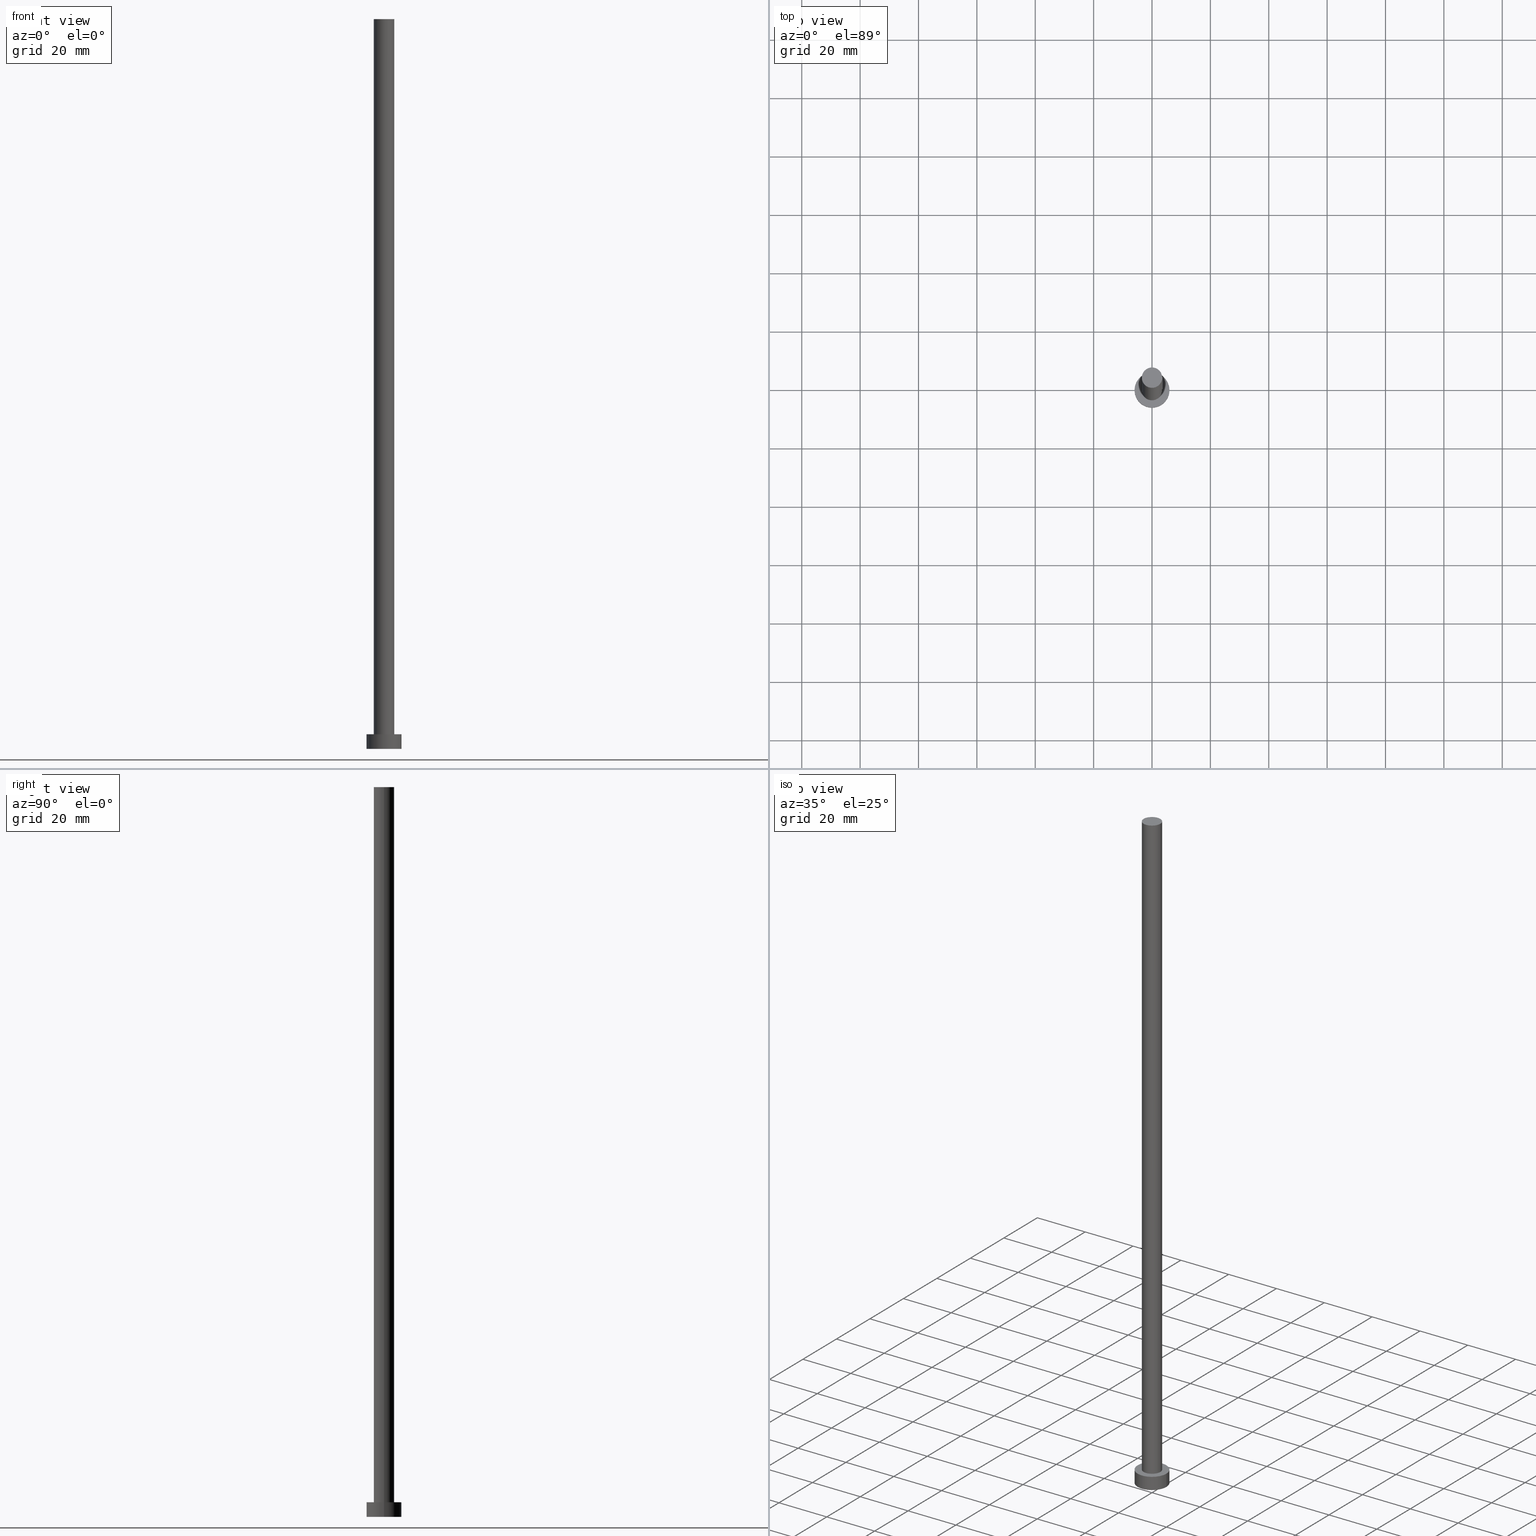
[diagram: canonical four-view strip — front | top / right | iso, engineering-drawing reading convention]
A machine part, canonical four-view strip (front | top / right | iso — engineering-drawing reading convention). The complete STEP part file that produces these views, byte-faithful:
ISO-10303-21;
HEADER;
FILE_DESCRIPTION (( 'STEP AP203' ),
    '1' );
FILE_NAME ('27db.STEP',
    '2023-02-13T11:46:23',
    ( '' ),
    ( '' ),
    'SwSTEP 2.0',
    'SolidWorks 2019',
    '' );
FILE_SCHEMA (( 'CONFIG_CONTROL_DESIGN' ));
ENDSEC;

DATA;
#1 = COORDINATED_UNIVERSAL_TIME_OFFSET ( 1, 0, .AHEAD. ) ;
#2 = CYLINDRICAL_SURFACE ( 'NONE', #93, 3.500000000000000000 ) ;
#3 = COORDINATED_UNIVERSAL_TIME_OFFSET ( 1, 0, .AHEAD. ) ;
#4 = PLANE ( 'NONE',  #53 ) ;
#5 = SECURITY_CLASSIFICATION_LEVEL ( 'unclassified' ) ;
#6 = DIRECTION ( 'NONE',  ( -0.000000000000000000, -0.000000000000000000, -1.000000000000000000 ) ) ;
#7 = CIRCLE ( 'NONE', #176, 6.000000000000000888 ) ;
#8 = CARTESIAN_POINT ( 'NONE',  ( 0.000000000000000000, 0.000000000000000000, 0.000000000000000000 ) ) ;
#9 = COORDINATED_UNIVERSAL_TIME_OFFSET ( 1, 0, .AHEAD. ) ;
#10 = VERTEX_POINT ( 'NONE', #32 ) ;
#11 = CARTESIAN_POINT ( 'NONE',  ( 0.000000000000000000, 0.000000000000000000, 0.000000000000000000 ) ) ;
#12 = EDGE_LOOP ( 'NONE', ( #83, #139, #104, #237 ) ) ;
#13 = DIRECTION ( 'NONE',  ( 1.000000000000000000, 0.000000000000000000, 0.000000000000000000 ) ) ;
#14 = APPROVAL_ROLE ( '' ) ;
#15 = CARTESIAN_POINT ( 'NONE',  ( 6.000000000000000888, 7.347880794884120722E-16, 5.000000000000000000 ) ) ;
#16 = DIRECTION ( 'NONE',  ( -0.000000000000000000, -0.000000000000000000, -1.000000000000000000 ) ) ;
#17 = APPROVAL_STATUS ( 'not_yet_approved' ) ;
#18 = DIRECTION ( 'NONE',  ( -0.000000000000000000, -0.000000000000000000, -1.000000000000000000 ) ) ;
#19 = CARTESIAN_POINT ( 'NONE',  ( 0.000000000000000000, 0.000000000000000000, 5.000000000000000000 ) ) ;
#20 = CC_DESIGN_DATE_AND_TIME_ASSIGNMENT ( #90, #239, ( #191 ) ) ;
#21 = CARTESIAN_POINT ( 'NONE',  ( -3.500000000000000000, 0.000000000000000000, 5.000000000000000000 ) ) ;
#22 = AXIS2_PLACEMENT_3D ( 'NONE', #11, #60, #238 ) ;
#23 = CC_DESIGN_PERSON_AND_ORGANIZATION_ASSIGNMENT ( #171, #215, ( #71 ) ) ;
#24 = APPROVAL_ROLE ( '' ) ;
#25 = COORDINATED_UNIVERSAL_TIME_OFFSET ( 1, 0, .AHEAD. ) ;
#26 = ORIENTED_EDGE ( 'NONE', *, *, #227, .T. ) ;
#27 =( LENGTH_UNIT ( ) NAMED_UNIT ( * ) SI_UNIT ( .MILLI., .METRE. ) );
#28 = PERSON_AND_ORGANIZATION_ROLE ( 'design_owner' ) ;
#29 = PERSON_AND_ORGANIZATION ( #56, #154 ) ;
#30 = PERSON_AND_ORGANIZATION ( #56, #154 ) ;
#31 = ORIENTED_EDGE ( 'NONE', *, *, #141, .T. ) ;
#32 = CARTESIAN_POINT ( 'NONE',  ( -3.500000000000000000, 0.000000000000000000, 250.0000000000000000 ) ) ;
#33 = CALENDAR_DATE ( 2023, 13, 2 ) ;
#34 = APPROVAL_PERSON_ORGANIZATION ( #188, #37, #14 ) ;
#35 = DIRECTION ( 'NONE',  ( 1.000000000000000000, 0.000000000000000000, 0.000000000000000000 ) ) ;
#36 = DIRECTION ( 'NONE',  ( 0.000000000000000000, 0.000000000000000000, 1.000000000000000000 ) ) ;
#37 = APPROVAL ( #204, 'NEUR�EN�' ) ;
#38 = DIRECTION ( 'NONE',  ( -0.000000000000000000, -0.000000000000000000, -1.000000000000000000 ) ) ;
#39 = VECTOR ( 'NONE', #38, 1000.000000000000000 ) ;
#40 = CARTESIAN_POINT ( 'NONE',  ( 0.000000000000000000, 0.000000000000000000, 5.000000000000000000 ) ) ;
#41 = CARTESIAN_POINT ( 'NONE',  ( 0.000000000000000000, 0.000000000000000000, 250.0000000000000000 ) ) ;
#42 = VERTEX_POINT ( 'NONE', #15 ) ;
#43 = PLANE ( 'NONE',  #207 ) ;
#44 = AXIS2_PLACEMENT_3D ( 'NONE', #228, #54, #212 ) ;
#45 = ORIENTED_EDGE ( 'NONE', *, *, #227, .F. ) ;
#46 = DIRECTION ( 'NONE',  ( 0.000000000000000000, 0.000000000000000000, 1.000000000000000000 ) ) ;
#47 = EDGE_LOOP ( 'NONE', ( #153, #218 ) ) ;
#48 = CARTESIAN_POINT ( 'NONE',  ( -3.500000000000000000, 0.000000000000000000, 250.0000000000000000 ) ) ;
#49 = VECTOR ( 'NONE', #6, 1000.000000000000000 ) ;
#50 = CARTESIAN_POINT ( 'NONE',  ( 0.000000000000000000, 0.000000000000000000, 5.000000000000000000 ) ) ;
#51 = PRODUCT_DEFINITION_FORMATION_WITH_SPECIFIED_SOURCE ( 'LIBOVOLN�', '', #216, .NOT_KNOWN. ) ;
#52 = DIRECTION ( 'NONE',  ( -1.000000000000000000, 0.000000000000000000, 0.000000000000000000 ) ) ;
#53 = AXIS2_PLACEMENT_3D ( 'NONE', #205, #36, #113 ) ;
#54 = DIRECTION ( 'NONE',  ( 0.000000000000000000, 0.000000000000000000, 1.000000000000000000 ) ) ;
#55 = LOCAL_TIME ( 12, 46, 23.00000000000000000, #25 ) ;
#56 = PERSON ( 'NEUR�EN�', 'NEUR�EN�', 'NEUR�EN�', ('NEUR�EN�'), ('NEUR�EN�'), ('NEUR�EN�') ) ;
#57 = CIRCLE ( 'NONE', #235, 3.500000000000000000 ) ;
#58 = VECTOR ( 'NONE', #18, 1000.000000000000000 ) ;
#59 = CALENDAR_DATE ( 2023, 13, 2 ) ;
#60 = DIRECTION ( 'NONE',  ( 0.000000000000000000, 0.000000000000000000, 1.000000000000000000 ) ) ;
#61 = DIRECTION ( 'NONE',  ( -0.000000000000000000, -0.000000000000000000, -1.000000000000000000 ) ) ;
#62 = LOCAL_TIME ( 12, 46, 23.00000000000000000, #9 ) ;
#63 = DIRECTION ( 'NONE',  ( 1.000000000000000000, 0.000000000000000000, 0.000000000000000000 ) ) ;
#64 = VERTEX_POINT ( 'NONE', #92 ) ;
#65 = CARTESIAN_POINT ( 'NONE',  ( 0.000000000000000000, 0.000000000000000000, 250.0000000000000000 ) ) ;
#66 = DIRECTION ( 'NONE',  ( -1.000000000000000000, 0.000000000000000000, 0.000000000000000000 ) ) ;
#67 = CC_DESIGN_SECURITY_CLASSIFICATION ( #191, ( #51 ) ) ;
#68 = CIRCLE ( 'NONE', #122, 6.000000000000000888 ) ;
#69 = PERSON_AND_ORGANIZATION_ROLE ( 'creator' ) ;
#70 = DIRECTION ( 'NONE',  ( 1.000000000000000000, 0.000000000000000000, 0.000000000000000000 ) ) ;
#71 = PRODUCT_DEFINITION ( 'NEZN�M�', '', #51, #244 ) ;
#72 = APPROVAL_DATE_TIME ( #221, #230 ) ;
#73 = DIRECTION ( 'NONE',  ( 1.000000000000000000, 0.000000000000000000, 0.000000000000000000 ) ) ;
#74 = DIRECTION ( 'NONE',  ( -0.000000000000000000, -0.000000000000000000, -1.000000000000000000 ) ) ;
#75 = CIRCLE ( 'NONE', #79, 3.500000000000000000 ) ;
#76 = CC_DESIGN_PERSON_AND_ORGANIZATION_ASSIGNMENT ( #29, #183, ( #51 ) ) ;
#77 = UNCERTAINTY_MEASURE_WITH_UNIT (LENGTH_MEASURE( 1.000000000000000082E-05 ), #27, 'distance_accuracy_value', 'NONE');
#78 = CC_DESIGN_DATE_AND_TIME_ASSIGNMENT ( #111, #163, ( #71 ) ) ;
#79 = AXIS2_PLACEMENT_3D ( 'NONE', #252, #251, #125 ) ;
#80 = PERSON_AND_ORGANIZATION ( #56, #154 ) ;
#81 = ORIENTED_EDGE ( 'NONE', *, *, #241, .T. ) ;
#82 = MECHANICAL_CONTEXT ( 'NONE', #115, 'mechanical' ) ;
#83 = ORIENTED_EDGE ( 'NONE', *, *, #210, .F. ) ;
#84 = PERSON_AND_ORGANIZATION ( #56, #154 ) ;
#85 = ORIENTED_EDGE ( 'NONE', *, *, #174, .T. ) ;
#86 = ADVANCED_FACE ( 'NONE', ( #182 ), #164, .T. ) ;
#87 = LINE ( 'NONE', #149, #145 ) ;
#88 = CIRCLE ( 'NONE', #106, 6.000000000000000888 ) ;
#89 = ORIENTED_EDGE ( 'NONE', *, *, #114, .T. ) ;
#90 = DATE_AND_TIME ( #33, #226 ) ;
#91 = CARTESIAN_POINT ( 'NONE',  ( 0.000000000000000000, 0.000000000000000000, 0.000000000000000000 ) ) ;
#92 = CARTESIAN_POINT ( 'NONE',  ( -6.000000000000000888, 0.000000000000000000, 0.000000000000000000 ) ) ;
#93 = AXIS2_PLACEMENT_3D ( 'NONE', #166, #225, #189 ) ;
#94 = ADVANCED_FACE ( 'NONE', ( #162 ), #242, .T. ) ;
#95 = APPROVAL_PERSON_ORGANIZATION ( #96, #230, #201 ) ;
#96 = PERSON_AND_ORGANIZATION ( #56, #154 ) ;
#97 = DIRECTION ( 'NONE',  ( -1.000000000000000000, 0.000000000000000000, 0.000000000000000000 ) ) ;
#98 = DIRECTION ( 'NONE',  ( 0.000000000000000000, 0.000000000000000000, 1.000000000000000000 ) ) ;
#99 = AXIS2_PLACEMENT_3D ( 'NONE', #117, #74, #66 ) ;
#100 = CARTESIAN_POINT ( 'NONE',  ( 6.000000000000000888, 7.347880794884120722E-16, 0.000000000000000000 ) ) ;
#101 = CC_DESIGN_APPROVAL ( #230, ( #191 ) ) ;
#102 = PRODUCT_RELATED_PRODUCT_CATEGORY ( 'detail', '', ( #216 ) ) ;
#103 = APPROVAL_DATE_TIME ( #148, #246 ) ;
#104 = ORIENTED_EDGE ( 'NONE', *, *, #146, .T. ) ;
#105 = ORIENTED_EDGE ( 'NONE', *, *, #165, .T. ) ;
#106 = AXIS2_PLACEMENT_3D ( 'NONE', #196, #151, #233 ) ;
#107 = DIRECTION ( 'NONE',  ( 0.000000000000000000, 0.000000000000000000, 1.000000000000000000 ) ) ;
#108 = ORIENTED_EDGE ( 'NONE', *, *, #210, .T. ) ;
#109 = FACE_OUTER_BOUND ( 'NONE', #47, .T. ) ;
#110 = ORIENTED_EDGE ( 'NONE', *, *, #146, .F. ) ;
#111 = DATE_AND_TIME ( #194, #55 ) ;
#112 = ORIENTED_EDGE ( 'NONE', *, *, #159, .T. ) ;
#113 = DIRECTION ( 'NONE',  ( 1.000000000000000000, 0.000000000000000000, -0.000000000000000000 ) ) ;
#114 = EDGE_CURVE ( 'NONE', #179, #64, #147, .T. ) ;
#115 = APPLICATION_CONTEXT ( 'configuration controlled 3d designs of mechanical parts and assemblies' ) ;
#116 = SHAPE_DEFINITION_REPRESENTATION ( #173, #229 ) ;
#117 = CARTESIAN_POINT ( 'NONE',  ( 0.000000000000000000, 0.000000000000000000, 5.000000000000000000 ) ) ;
#118 = AXIS2_PLACEMENT_3D ( 'NONE', #91, #184, #70 ) ;
#119 = FACE_OUTER_BOUND ( 'NONE', #12, .T. ) ;
#120 = CARTESIAN_POINT ( 'NONE',  ( 0.000000000000000000, 0.000000000000000000, 5.000000000000000000 ) ) ;
#121 = ORIENTED_EDGE ( 'NONE', *, *, #223, .F. ) ;
#122 = AXIS2_PLACEMENT_3D ( 'NONE', #40, #156, #63 ) ;
#123 = ADVANCED_FACE ( 'NONE', ( #167 ), #2, .T. ) ;
#124 = ADVANCED_FACE ( 'NONE', ( #243, #240 ), #4, .T. ) ;
#125 = DIRECTION ( 'NONE',  ( 1.000000000000000000, 0.000000000000000000, 0.000000000000000000 ) ) ;
#126 = ORIENTED_EDGE ( 'NONE', *, *, #174, .F. ) ;
#127 = APPLICATION_CONTEXT ( 'configuration controlled 3d designs of mechanical parts and assemblies' ) ;
#128 = CARTESIAN_POINT ( 'NONE',  ( 3.500000000000000000, 4.286263797015736595E-16, 5.000000000000000000 ) ) ;
#129 = AXIS2_PLACEMENT_3D ( 'NONE', #65, #16, #97 ) ;
#130 = EDGE_LOOP ( 'NONE', ( #85, #108 ) ) ;
#131 = EDGE_CURVE ( 'NONE', #10, #175, #190, .T. ) ;
#132 = VERTEX_POINT ( 'NONE', #140 ) ;
#133 = ORIENTED_EDGE ( 'NONE', *, *, #141, .F. ) ;
#134 = AXIS2_PLACEMENT_3D ( 'NONE', #120, #186, #52 ) ;
#135 = CALENDAR_DATE ( 2023, 13, 2 ) ;
#136 = LOCAL_TIME ( 12, 46, 23.00000000000000000, #206 ) ;
#137 = LINE ( 'NONE', #209, #49 ) ;
#138 = ADVANCED_FACE ( 'NONE', ( #119 ), #208, .T. ) ;
#139 = ORIENTED_EDGE ( 'NONE', *, *, #185, .T. ) ;
#140 = CARTESIAN_POINT ( 'NONE',  ( -6.000000000000000888, 0.000000000000000000, 5.000000000000000000 ) ) ;
#141 = EDGE_CURVE ( 'NONE', #175, #203, #220, .T. ) ;
#142 = APPROVAL_DATE_TIME ( #158, #37 ) ;
#143 = DIRECTION ( 'NONE',  ( 1.000000000000000000, 0.000000000000000000, 0.000000000000000000 ) ) ;
#144 = DIRECTION ( 'NONE',  ( 0.000000000000000000, 0.000000000000000000, 1.000000000000000000 ) ) ;
#145 = VECTOR ( 'NONE', #61, 1000.000000000000000 ) ;
#146 = EDGE_CURVE ( 'NONE', #203, #175, #57, .T. ) ;
#147 = CIRCLE ( 'NONE', #118, 6.000000000000000888 ) ;
#148 = DATE_AND_TIME ( #59, #62 ) ;
#149 = CARTESIAN_POINT ( 'NONE',  ( -6.000000000000000888, 0.000000000000000000, 5.000000000000000000 ) ) ;
#150 = EDGE_LOOP ( 'NONE', ( #197, #222, #253, #112 ) ) ;
#151 = DIRECTION ( 'NONE',  ( 0.000000000000000000, 0.000000000000000000, 1.000000000000000000 ) ) ;
#152 = CLOSED_SHELL ( 'NONE', ( #138, #94, #86, #124, #250, #123, #199 ) ) ;
#153 = ORIENTED_EDGE ( 'NONE', *, *, #159, .F. ) ;
#154 = ORGANIZATION ( 'NEUR�EN�', 'NEUR�EN�', '' ) ;
#155 =( NAMED_UNIT ( * ) PLANE_ANGLE_UNIT ( ) SI_UNIT ( $, .RADIAN. ) );
#156 = DIRECTION ( 'NONE',  ( 0.000000000000000000, 0.000000000000000000, 1.000000000000000000 ) ) ;
#157 = EDGE_LOOP ( 'NONE', ( #234, #126, #202, #31 ) ) ;
#158 = DATE_AND_TIME ( #135, #217 ) ;
#159 = EDGE_CURVE ( 'NONE', #64, #179, #7, .T. ) ;
#160 = CARTESIAN_POINT ( 'NONE',  ( 0.000000000000000000, 0.000000000000000000, 0.000000000000000000 ) ) ;
#161 = APPROVAL_PERSON_ORGANIZATION ( #80, #246, #24 ) ;
#162 = FACE_OUTER_BOUND ( 'NONE', #236, .T. ) ;
#163 = DATE_TIME_ROLE ( 'creation_date' ) ;
#164 = CYLINDRICAL_SURFACE ( 'NONE', #134, 6.000000000000000888 ) ;
#165 = EDGE_CURVE ( 'NONE', #42, #179, #137, .T. ) ;
#166 = CARTESIAN_POINT ( 'NONE',  ( 0.000000000000000000, 0.000000000000000000, 250.0000000000000000 ) ) ;
#167 = FACE_OUTER_BOUND ( 'NONE', #157, .T. ) ;
#168 = AXIS2_PLACEMENT_3D ( 'NONE', #19, #98, #73 ) ;
#169 = LINE ( 'NONE', #231, #39 ) ;
#170 = APPROVAL_STATUS ( 'not_yet_approved' ) ;
#171 = PERSON_AND_ORGANIZATION ( #56, #154 ) ;
#172 =( NAMED_UNIT ( * ) SI_UNIT ( $, .STERADIAN. ) SOLID_ANGLE_UNIT ( ) );
#173 = PRODUCT_DEFINITION_SHAPE ( 'NONE', 'NONE',  #71 ) ;
#174 = EDGE_CURVE ( 'NONE', #10, #255, #211, .T. ) ;
#175 = VERTEX_POINT ( 'NONE', #21 ) ;
#176 = AXIS2_PLACEMENT_3D ( 'NONE', #160, #245, #35 ) ;
#177 = CC_DESIGN_APPROVAL ( #246, ( #71 ) ) ;
#178 = CARTESIAN_POINT ( 'NONE',  ( 3.500000000000000000, 4.286263797015736595E-16, 250.0000000000000000 ) ) ;
#179 = VERTEX_POINT ( 'NONE', #100 ) ;
#180 = CC_DESIGN_PERSON_AND_ORGANIZATION_ASSIGNMENT ( #224, #181, ( #191 ) ) ;
#181 = PERSON_AND_ORGANIZATION_ROLE ( 'classification_officer' ) ;
#182 = FACE_OUTER_BOUND ( 'NONE', #150, .T. ) ;
#183 = PERSON_AND_ORGANIZATION_ROLE ( 'design_supplier' ) ;
#184 = DIRECTION ( 'NONE',  ( 0.000000000000000000, 0.000000000000000000, 1.000000000000000000 ) ) ;
#185 = EDGE_CURVE ( 'NONE', #255, #203, #169, .T. ) ;
#186 = DIRECTION ( 'NONE',  ( -0.000000000000000000, -0.000000000000000000, -1.000000000000000000 ) ) ;
#187 =( GEOMETRIC_REPRESENTATION_CONTEXT ( 3 ) GLOBAL_UNCERTAINTY_ASSIGNED_CONTEXT ( ( #77 ) ) GLOBAL_UNIT_ASSIGNED_CONTEXT ( ( #27, #155, #172 ) ) REPRESENTATION_CONTEXT ( 'NONE', 'WORKASPACE' ) );
#188 = PERSON_AND_ORGANIZATION ( #56, #154 ) ;
#189 = DIRECTION ( 'NONE',  ( -1.000000000000000000, 0.000000000000000000, 0.000000000000000000 ) ) ;
#190 = LINE ( 'NONE', #48, #58 ) ;
#191 = SECURITY_CLASSIFICATION ( '', '', #5 ) ;
#192 = APPLICATION_PROTOCOL_DEFINITION ( 'international standard', 'config_control_design', 1994, #127 ) ;
#193 = CC_DESIGN_PERSON_AND_ORGANIZATION_ASSIGNMENT ( #30, #69, ( #51 ) ) ;
#194 = CALENDAR_DATE ( 2023, 13, 2 ) ;
#195 = EDGE_LOOP ( 'NONE', ( #81, #26 ) ) ;
#196 = CARTESIAN_POINT ( 'NONE',  ( 0.000000000000000000, 0.000000000000000000, 5.000000000000000000 ) ) ;
#197 = ORIENTED_EDGE ( 'NONE', *, *, #165, .F. ) ;
#198 = APPLICATION_PROTOCOL_DEFINITION ( 'international standard', 'config_control_design', 1994, #115 ) ;
#199 = ADVANCED_FACE ( 'NONE', ( #249 ), #43, .T. ) ;
#200 = AXIS2_PLACEMENT_3D ( 'NONE', #8, #46, #13 ) ;
#201 = APPROVAL_ROLE ( '' ) ;
#202 = ORIENTED_EDGE ( 'NONE', *, *, #131, .T. ) ;
#203 = VERTEX_POINT ( 'NONE', #128 ) ;
#204 = APPROVAL_STATUS ( 'not_yet_approved' ) ;
#205 = CARTESIAN_POINT ( 'NONE',  ( 0.000000000000000000, 0.000000000000000000, 5.000000000000000000 ) ) ;
#206 = COORDINATED_UNIVERSAL_TIME_OFFSET ( 1, 0, .AHEAD. ) ;
#207 = AXIS2_PLACEMENT_3D ( 'NONE', #41, #107, #232 ) ;
#208 = CYLINDRICAL_SURFACE ( 'NONE', #129, 3.500000000000000000 ) ;
#209 = CARTESIAN_POINT ( 'NONE',  ( 6.000000000000000888, 7.347880794884120722E-16, 5.000000000000000000 ) ) ;
#210 = EDGE_CURVE ( 'NONE', #255, #10, #75, .T. ) ;
#211 = CIRCLE ( 'NONE', #44, 3.500000000000000000 ) ;
#212 = DIRECTION ( 'NONE',  ( 1.000000000000000000, 0.000000000000000000, 0.000000000000000000 ) ) ;
#213 = CC_DESIGN_PERSON_AND_ORGANIZATION_ASSIGNMENT ( #84, #28, ( #216 ) ) ;
#214 = CC_DESIGN_APPROVAL ( #37, ( #51 ) ) ;
#215 = PERSON_AND_ORGANIZATION_ROLE ( 'creator' ) ;
#216 = PRODUCT ( '27db', '27db', '', ( #82 ) ) ;
#217 = LOCAL_TIME ( 12, 46, 23.00000000000000000, #3 ) ;
#218 = ORIENTED_EDGE ( 'NONE', *, *, #114, .F. ) ;
#219 = EDGE_LOOP ( 'NONE', ( #133, #110 ) ) ;
#220 = CIRCLE ( 'NONE', #168, 3.500000000000000000 ) ;
#221 = DATE_AND_TIME ( #254, #136 ) ;
#222 = ORIENTED_EDGE ( 'NONE', *, *, #241, .F. ) ;
#223 = EDGE_CURVE ( 'NONE', #132, #64, #87, .T. ) ;
#224 = PERSON_AND_ORGANIZATION ( #56, #154 ) ;
#225 = DIRECTION ( 'NONE',  ( -0.000000000000000000, -0.000000000000000000, -1.000000000000000000 ) ) ;
#226 = LOCAL_TIME ( 12, 46, 23.00000000000000000, #1 ) ;
#227 = EDGE_CURVE ( 'NONE', #42, #132, #68, .T. ) ;
#228 = CARTESIAN_POINT ( 'NONE',  ( 0.000000000000000000, 0.000000000000000000, 250.0000000000000000 ) ) ;
#229 = ADVANCED_BREP_SHAPE_REPRESENTATION ( '27db', ( #247, #200 ), #187 ) ;
#230 = APPROVAL ( #17, 'NEUR�EN�' ) ;
#231 = CARTESIAN_POINT ( 'NONE',  ( 3.500000000000000000, 4.286263797015736595E-16, 250.0000000000000000 ) ) ;
#232 = DIRECTION ( 'NONE',  ( 1.000000000000000000, 0.000000000000000000, -0.000000000000000000 ) ) ;
#233 = DIRECTION ( 'NONE',  ( 1.000000000000000000, 0.000000000000000000, 0.000000000000000000 ) ) ;
#234 = ORIENTED_EDGE ( 'NONE', *, *, #185, .F. ) ;
#235 = AXIS2_PLACEMENT_3D ( 'NONE', #50, #144, #143 ) ;
#236 = EDGE_LOOP ( 'NONE', ( #45, #105, #89, #121 ) ) ;
#237 = ORIENTED_EDGE ( 'NONE', *, *, #131, .F. ) ;
#238 = DIRECTION ( 'NONE',  ( 1.000000000000000000, 0.000000000000000000, -0.000000000000000000 ) ) ;
#239 = DATE_TIME_ROLE ( 'classification_date' ) ;
#240 = FACE_OUTER_BOUND ( 'NONE', #195, .T. ) ;
#241 = EDGE_CURVE ( 'NONE', #132, #42, #88, .T. ) ;
#242 = CYLINDRICAL_SURFACE ( 'NONE', #99, 6.000000000000000888 ) ;
#243 = FACE_BOUND ( 'NONE', #219, .T. ) ;
#244 = DESIGN_CONTEXT ( 'detailed design', #127, 'design' ) ;
#245 = DIRECTION ( 'NONE',  ( 0.000000000000000000, 0.000000000000000000, 1.000000000000000000 ) ) ;
#246 = APPROVAL ( #170, 'NEUR�EN�' ) ;
#247 = MANIFOLD_SOLID_BREP ( 'P�idat vysunut�m3', #152 ) ;
#248 = PLANE ( 'NONE',  #22 ) ;
#249 = FACE_OUTER_BOUND ( 'NONE', #130, .T. ) ;
#250 = ADVANCED_FACE ( 'NONE', ( #109 ), #248, .F. ) ;
#251 = DIRECTION ( 'NONE',  ( 0.000000000000000000, 0.000000000000000000, 1.000000000000000000 ) ) ;
#252 = CARTESIAN_POINT ( 'NONE',  ( 0.000000000000000000, 0.000000000000000000, 250.0000000000000000 ) ) ;
#253 = ORIENTED_EDGE ( 'NONE', *, *, #223, .T. ) ;
#254 = CALENDAR_DATE ( 2023, 13, 2 ) ;
#255 = VERTEX_POINT ( 'NONE', #178 ) ;
ENDSEC;
END-ISO-10303-21;
